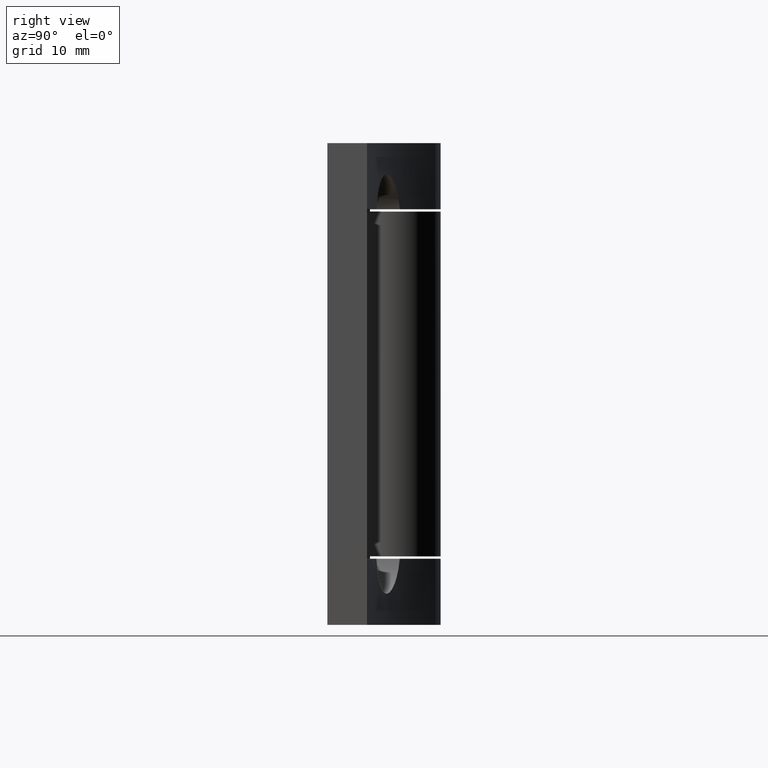
[diagram: clean part render]
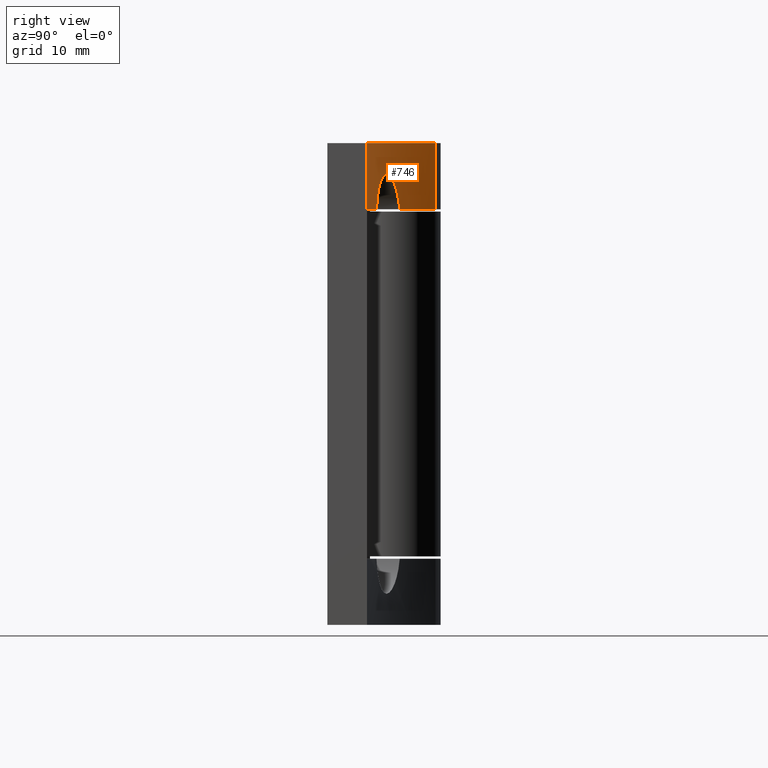
[diagram: same view with one face highlighted and labeled with its STEP entity id]
A machine part, right view. The second image highlights one B-rep face of the part: STEP entity #746.
In plain terms, the highlighted cylindrical surface (partial cylindrical patch) has radius 82.524 mm, axis along (0, 0, 1).
Its self-contained STEP definition (entity closure, byte-faithful):
#84=FACE_OUTER_BOUND('',#133,.T.);
#133=EDGE_LOOP('',(#563,#564,#565,#566,#567,#568));
#183=CIRCLE('',#787,82.5240363040418);
#185=CIRCLE('',#790,82.5240363040418);
#196=CIRCLE('',#808,82.5240363040418);
#219=B_SPLINE_CURVE_WITH_KNOTS('',3,(#1105,#1106,#1107,#1108,#1109,#1110,
#1111,#1112,#1113,#1114,#1115,#1116,#1117,#1118,#1119,#1120,#1121,#1122),
 .UNSPECIFIED.,.F.,.F.,(4,2,2,2,2,2,2,2,4),(1.6587572307552,1.71943175513642,
1.90740226381073,2.10095404263348,2.29450582145622,2.49048069327173,2.68645556508724,
2.87468902900573,2.93540617287786),.UNSPECIFIED.);
#239=LINE('',#1205,#299);
#240=LINE('',#1208,#300);
#299=VECTOR('',#937,7.);
#300=VECTOR('',#940,7.);
#343=VERTEX_POINT('',#1101);
#345=VERTEX_POINT('',#1104);
#351=VERTEX_POINT('',#1153);
#355=VERTEX_POINT('',#1163);
#369=VERTEX_POINT('',#1204);
#370=VERTEX_POINT('',#1206);
#414=EDGE_CURVE('',#345,#343,#219,.T.);
#421=EDGE_CURVE('',#351,#345,#183,.T.);
#427=EDGE_CURVE('',#343,#355,#185,.T.);
#446=EDGE_CURVE('',#355,#369,#239,.T.);
#447=EDGE_CURVE('',#370,#369,#196,.T.);
#448=EDGE_CURVE('',#351,#370,#240,.T.);
#563=ORIENTED_EDGE('',*,*,#414,.T.);
#564=ORIENTED_EDGE('',*,*,#427,.T.);
#565=ORIENTED_EDGE('',*,*,#446,.T.);
#566=ORIENTED_EDGE('',*,*,#447,.F.);
#567=ORIENTED_EDGE('',*,*,#448,.F.);
#568=ORIENTED_EDGE('',*,*,#421,.T.);
#724=CYLINDRICAL_SURFACE('',#807,82.5240363040418);
#746=ADVANCED_FACE('',(#84),#724,.F.);
#787=AXIS2_PLACEMENT_3D('',#1154,#883,#884);
#790=AXIS2_PLACEMENT_3D('',#1165,#893,#894);
#807=AXIS2_PLACEMENT_3D('',#1203,#935,#936);
#808=AXIS2_PLACEMENT_3D('',#1207,#938,#939);
#883=DIRECTION('center_axis',(0.,0.,-1.));
#884=DIRECTION('ref_axis',(0.422258197441596,0.906475600715967,0.));
#893=DIRECTION('center_axis',(0.,0.,-1.));
#894=DIRECTION('ref_axis',(0.422258197441596,0.906475600715967,0.));
#935=DIRECTION('center_axis',(0.,0.,1.));
#936=DIRECTION('ref_axis',(0.422258197441596,0.906475600715967,0.));
#937=DIRECTION('',(0.,0.,1.));
#938=DIRECTION('center_axis',(0.,0.,-1.));
#939=DIRECTION('ref_axis',(0.422258197441596,0.906475600715967,0.));
#940=DIRECTION('',(0.,0.,1.));
#1101=CARTESIAN_POINT('',(-2.07804308182971,5.56516702537011,18.5));
#1104=CARTESIAN_POINT('',(7.57804308182879,3.09950154938258,18.5));
#1105=CARTESIAN_POINT('Ctrl Pts',(7.57804308182886,3.09950154938258,18.5));
#1106=CARTESIAN_POINT('Ctrl Pts',(7.52259180900131,3.11014220321556,18.7059393339644));
#1107=CARTESIAN_POINT('Ctrl Pts',(7.45361753524456,3.12343416795909,18.9093295242076));
#1108=CARTESIAN_POINT('Ctrl Pts',(7.1189950747704,3.18852837929067,19.7202576254656));
#1109=CARTESIAN_POINT('Ctrl Pts',(6.73819323604156,3.26395488251716,20.278740401157));
#1110=CARTESIAN_POINT('Ctrl Pts',(5.85257538661715,3.44842439770769,21.17259558396));
#1111=CARTESIAN_POINT('Ctrl Pts',(5.28437790868049,3.57097377407674,21.561939901826));
#1112=CARTESIAN_POINT('Ctrl Pts',(4.04560166598713,3.85536429550804,22.0755519903286));
#1113=CARTESIAN_POINT('Ctrl Pts',(3.37518908125027,4.01760359819877,22.2));
#1114=CARTESIAN_POINT('Ctrl Pts',(2.11698411761504,4.3382597971095,22.2));
#1115=CARTESIAN_POINT('Ctrl Pts',(1.44290730373346,4.51886712691728,22.0727332377066));
#1116=CARTESIAN_POINT('Ctrl Pts',(0.202183779095987,4.86722136689606,21.5543831721111));
#1117=CARTESIAN_POINT('Ctrl Pts',(-0.364572528091881,5.03456951399802,21.1632942950259));
#1118=CARTESIAN_POINT('Ctrl Pts',(-1.24344410602292,5.3010191643507,20.270675891754));
#1119=CARTESIAN_POINT('Ctrl Pts',(-1.62117397245303,5.41962442753343,19.715795054725));
#1120=CARTESIAN_POINT('Ctrl Pts',(-1.95405025129008,5.52545232650711,18.9080151448393));
#1121=CARTESIAN_POINT('Ctrl Pts',(-2.02274641009939,5.54742808425577,18.7053651641509));
#1122=CARTESIAN_POINT('Ctrl Pts',(-2.07804308182978,5.56516702537013,18.5));
#1153=CARTESIAN_POINT('',(14.2499999999995,2.1,18.5));
#1154=CARTESIAN_POINT('Origin',(23.1299999999995,84.1448789865083,18.5));
#1163=CARTESIAN_POINT('',(-11.7164508153499,9.3388536042958,18.5));
#1165=CARTESIAN_POINT('Origin',(23.1299999999995,84.1448789865083,18.5));
#1203=CARTESIAN_POINT('Origin',(23.1299999999995,84.1448789865083,0.));
#1204=CARTESIAN_POINT('',(-11.7164508153499,9.3388536042958,25.5));
#1205=CARTESIAN_POINT('',(-11.7164508153499,9.3388536042958,0.));
#1206=CARTESIAN_POINT('',(14.2499999999995,2.1,25.5));
#1207=CARTESIAN_POINT('Origin',(23.1299999999995,84.1448789865083,25.5));
#1208=CARTESIAN_POINT('',(14.2499999999995,2.1,0.));